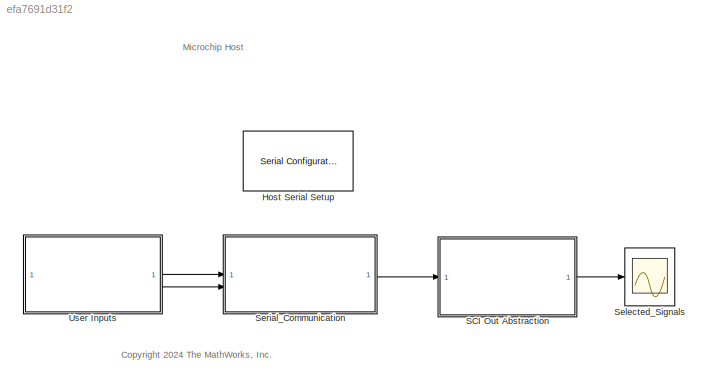
MODEL slx_efa7691d31f2
KIND model
CONFIG AbsTol = auto
CONFIG EnableMultiTasking = on
CONFIG FixedStep = auto
CONFIG MaxStep = auto
CONFIG MinStep = auto
CONFIG RelTol = 1e-3
CONFIG SampleTimeConstraint = Unconstrained
CONFIG SolverName = FixedStepDiscrete
CONFIG StartTime = 0.0
CONFIG StopTime = inf
BLOCK [Reference] Host Serial Setup  REF=instrumentseriallib/Serial Configuration
  Priority = -99
  SourceBlock = instrumentseriallib/Serial Configuration
  SourceType = system.SerialConfiguration
BLOCK [SubSystem] SCI Out Abstraction
  ReferencedSubsystem = SCIRXMotorSwapHost
BLOCK [Scope] Selected_Signals
  Floating = off
  NumInputPorts = 1
  ScopeSpecificationString = Simulink.scopes.TimeScopeBlockCfg('CurrentConfiguration', extmgr.ConfigurationSet(extmgr.Configuration('Core','General UI',true),extmgr.Configuration('Core','Source UI',true),extmgr.Configuration('Sources','WiredSimulink',true,'DataLoggingVariableName','Results_HW','DataLoggingSaveFormat','StructureWithTime','DataLogging',true),extmgr.Configuration('Visuals','Time Domain',true,'InputProcessing','F...<+1997ch>
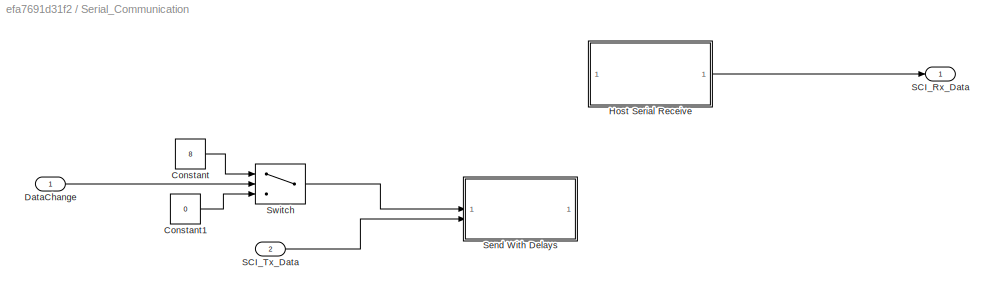
BLOCK [SubSystem] Serial_Communication
BLOCK [Constant] Serial_Communication/Constant
  OutDataTypeStr = uint8
  Value = 8
BLOCK [Constant] Serial_Communication/Constant1
  OutDataTypeStr = uint8
  Value = 0
BLOCK [Inport] Serial_Communication/DataChange
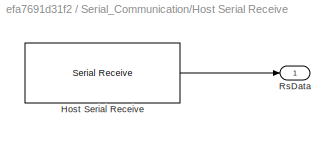
BLOCK [SubSystem] Serial_Communication/Host Serial Receive
BLOCK [Reference] Serial_Communication/Host Serial Receive/Host Serial Receive  REF=instrumentseriallib/Serial Receive
  SourceBlock = instrumentseriallib/Serial Receive
  SourceType = system.SerialReceive
BLOCK [Outport] Serial_Communication/Host Serial Receive/RsData
BLOCK [Outport] Serial_Communication/SCI_Rx_Data
BLOCK [Inport] Serial_Communication/SCI_Tx_Data
  Port = 2
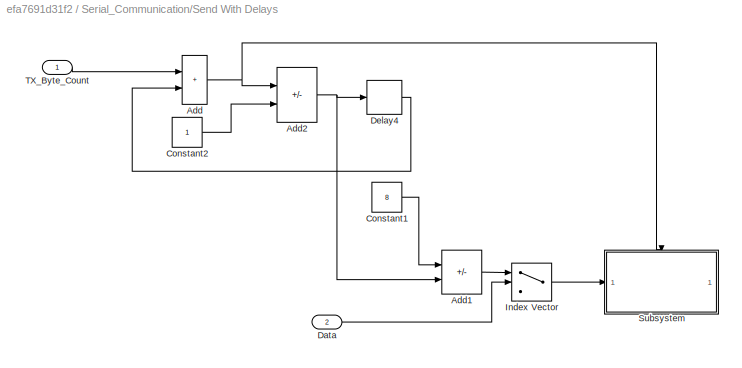
BLOCK [SubSystem] Serial_Communication/Send With Delays
BLOCK [Sum] Serial_Communication/Send With Delays/Add
  IconShape = rectangular
  SaturateOnIntegerOverflow = on
BLOCK [Sum] Serial_Communication/Send With Delays/Add1
  IconShape = rectangular
  Inputs = +-
  SaturateOnIntegerOverflow = on
BLOCK [Sum] Serial_Communication/Send With Delays/Add2
  IconShape = rectangular
  Inputs = +-
  SaturateOnIntegerOverflow = on
BLOCK [Constant] Serial_Communication/Send With Delays/Constant1
  OutDataTypeStr = uint8
  Value = 8
BLOCK [Constant] Serial_Communication/Send With Delays/Constant2
  OutDataTypeStr = uint8
BLOCK [Inport] Serial_Communication/Send With Delays/Data
  Port = 2
BLOCK [Delay] Serial_Communication/Send With Delays/Delay4
  DelayLength = 1
  InputPortMap = u0
BLOCK [MultiPortSwitch] Serial_Communication/Send With Delays/Index Vector
  InputSameDT = off
  Inputs = 1
  SaturateOnIntegerOverflow = off
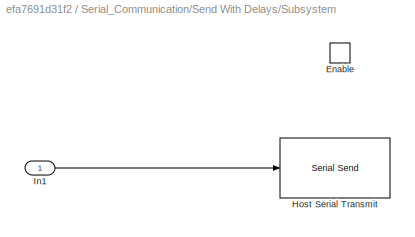
BLOCK [SubSystem] Serial_Communication/Send With Delays/Subsystem
BLOCK [EnablePort] Serial_Communication/Send With Delays/Subsystem/Enable
BLOCK [Reference] Serial_Communication/Send With Delays/Subsystem/Host Serial Transmit  REF=instrumentseriallib/Serial Send
  SourceBlock = instrumentseriallib/Serial Send
  SourceType = system.SerialSend
BLOCK [Inport] Serial_Communication/Send With Delays/Subsystem/In1
BLOCK [Inport] Serial_Communication/Send With Delays/TX_Byte_Count
BLOCK [Switch] Serial_Communication/Switch
  Criteria = u2 > Threshold
  InputSameDT = off
  SaturateOnIntegerOverflow = off
BLOCK [SubSystem] User Inputs
  ReferencedSubsystem = UserInputsMotorSwapHost
ANNOTATION (root): Microchip Host
ANNOTATION (root): <copyright redacted>
LINE SCI Out Abstraction:1 -> Selected_Signals:1
LINE Serial_Communication/Constant1:1 -> Serial_Communication/Switch:3
LINE Serial_Communication/Constant:1 -> Serial_Communication/Switch:1
LINE Serial_Communication/DataChange:1 -> Serial_Communication/Switch:2
LINE Serial_Communication/Host Serial Receive/Host Serial Receive:1 -> Serial_Communication/Host Serial Receive/RsData:1
LINE Serial_Communication/Host Serial Receive:1 -> Serial_Communication/SCI_Rx_Data:1
LINE Serial_Communication/SCI_Tx_Data:1 -> Serial_Communication/Send With Delays:2
LINE Serial_Communication/Send With Delays/Add1:1 -> Serial_Communication/Send With Delays/Index Vector:1
NET Serial_Communication/Send With Delays/Add2:1 -> Serial_Communication/Send With Delays/Add1:2, Serial_Communication/Send With Delays/Delay4:1
NET Serial_Communication/Send With Delays/Add:1 -> Serial_Communication/Send With Delays/Add2:1, Serial_Communication/Send With Delays/Subsystem:enable
LINE Serial_Communication/Send With Delays/Constant1:1 -> Serial_Communication/Send With Delays/Add1:1
LINE Serial_Communication/Send With Delays/Constant2:1 -> Serial_Communication/Send With Delays/Add2:2
LINE Serial_Communication/Send With Delays/Data:1 -> Serial_Communication/Send With Delays/Index Vector:2
LINE Serial_Communication/Send With Delays/Delay4:1 -> Serial_Communication/Send With Delays/Add:2
LINE Serial_Communication/Send With Delays/Index Vector:1 -> Serial_Communication/Send With Delays/Subsystem:1
LINE Serial_Communication/Send With Delays/Subsystem/In1:1 -> Serial_Communication/Send With Delays/Subsystem/Host Serial Transmit:1
LINE Serial_Communication/Send With Delays/TX_Byte_Count:1 -> Serial_Communication/Send With Delays/Add:1
LINE Serial_Communication/Switch:1 -> Serial_Communication/Send With Delays:1
LINE Serial_Communication:1 -> SCI Out Abstraction:1
LINE User Inputs:1 -> Serial_Communication:1
LINE User Inputs:2 -> Serial_Communication:2
note: NET lines group one-source signal fan-out (src -> all destinations, sorted); 1:1 wires keep LINE
